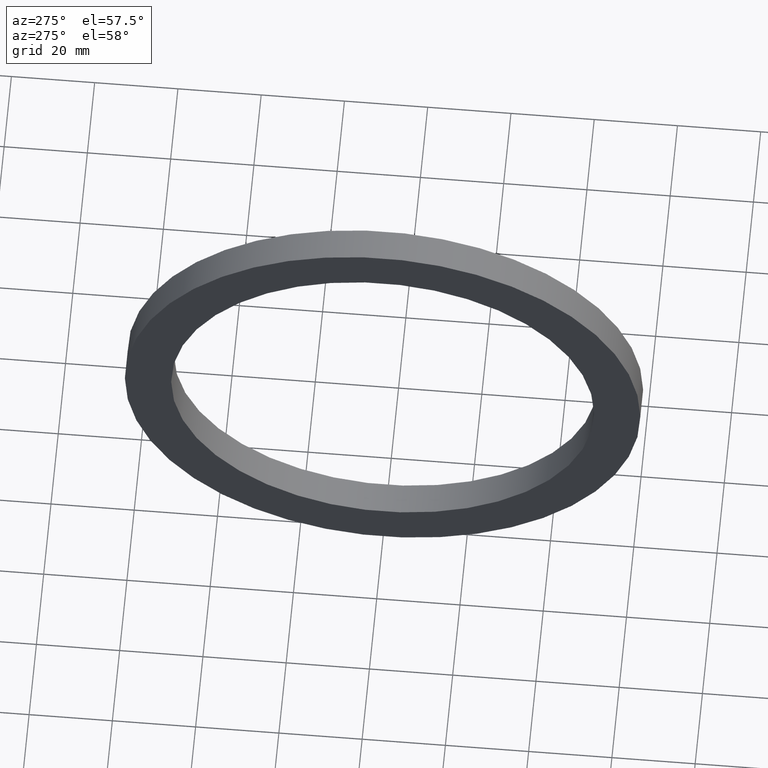
[diagram: clean part render]
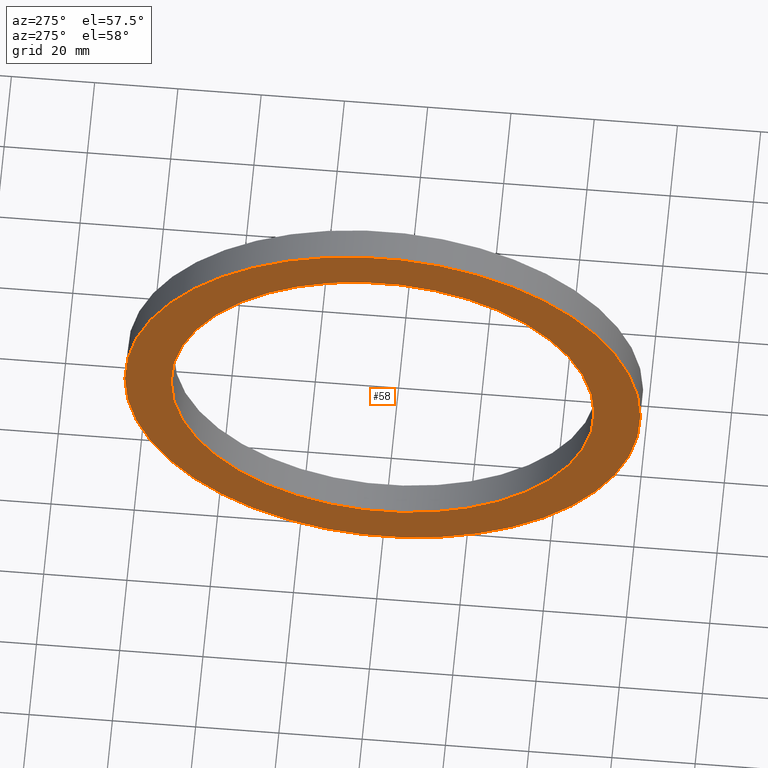
[diagram: same view with one face highlighted and labeled with its STEP entity id]
A machine part, auxiliary view. The second image highlights one B-rep face of the part: STEP entity #58.
In plain terms, the highlighted planar face has unit normal (-1, 0, 0).
Its self-contained STEP definition (entity closure, byte-faithful):
#16=PLANE('',#74);
#20=FACE_BOUND('',#32,.T.);
#24=FACE_OUTER_BOUND('',#31,.T.);
#31=EDGE_LOOP('',(#51));
#32=EDGE_LOOP('',(#52));
#34=CIRCLE('',#69,2.4375);
#36=CIRCLE('',#73,2.);
#38=VERTEX_POINT('',#97);
#40=VERTEX_POINT('',#103);
#42=EDGE_CURVE('',#38,#38,#34,.T.);
#44=EDGE_CURVE('',#40,#40,#36,.T.);
#51=ORIENTED_EDGE('',*,*,#42,.F.);
#52=ORIENTED_EDGE('',*,*,#44,.T.);
#58=ADVANCED_FACE('',(#24,#20),#16,.T.);
#69=AXIS2_PLACEMENT_3D('',#98,#81,#82);
#73=AXIS2_PLACEMENT_3D('',#104,#89,#90);
#74=AXIS2_PLACEMENT_3D('',#105,#91,#92);
#81=DIRECTION('center_axis',(1.,0.,0.));
#82=DIRECTION('ref_axis',(0.,1.,0.));
#89=DIRECTION('center_axis',(1.,0.,0.));
#90=DIRECTION('ref_axis',(0.,1.,0.));
#91=DIRECTION('center_axis',(-1.,0.,0.));
#92=DIRECTION('ref_axis',(0.,0.,1.));
#97=CARTESIAN_POINT('',(-0.15,2.4375,0.));
#98=CARTESIAN_POINT('Origin',(-0.15,0.,0.));
#103=CARTESIAN_POINT('',(-0.15,2.,0.));
#104=CARTESIAN_POINT('Origin',(-0.15,0.,0.));
#105=CARTESIAN_POINT('Origin',(-0.15,2.21875,0.));